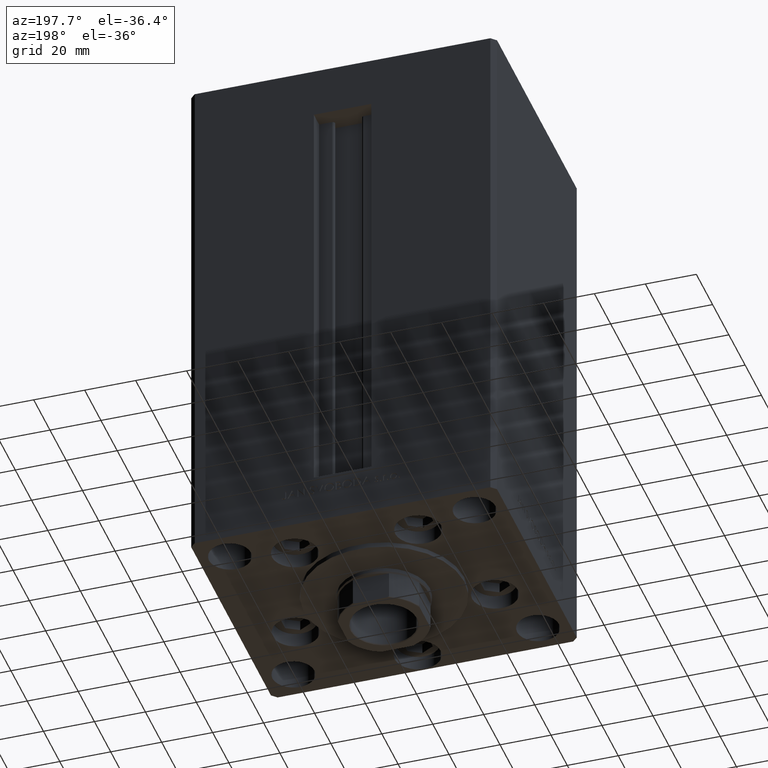
[diagram: clean part render]
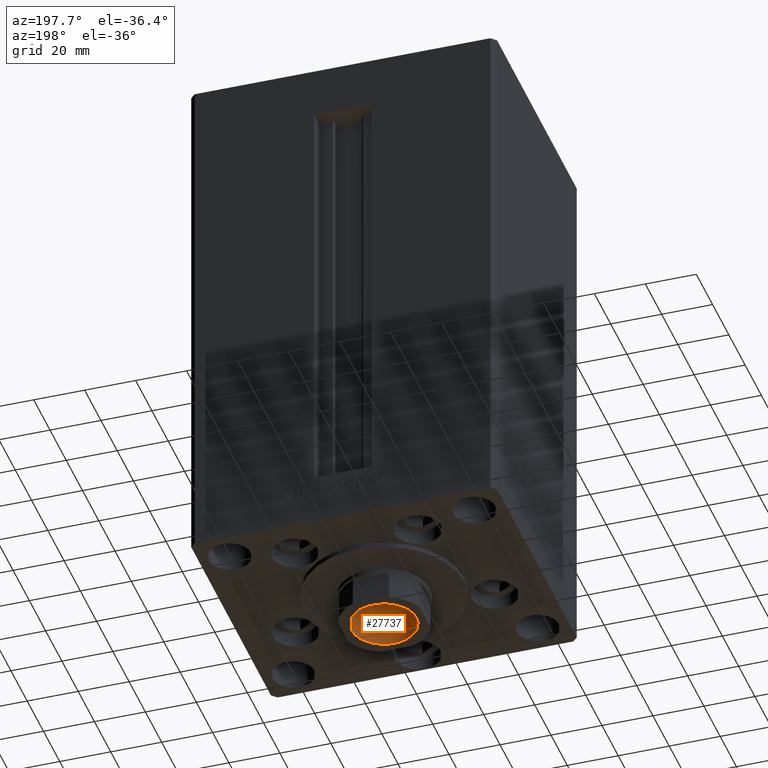
[diagram: same view with one face highlighted and labeled with its STEP entity id]
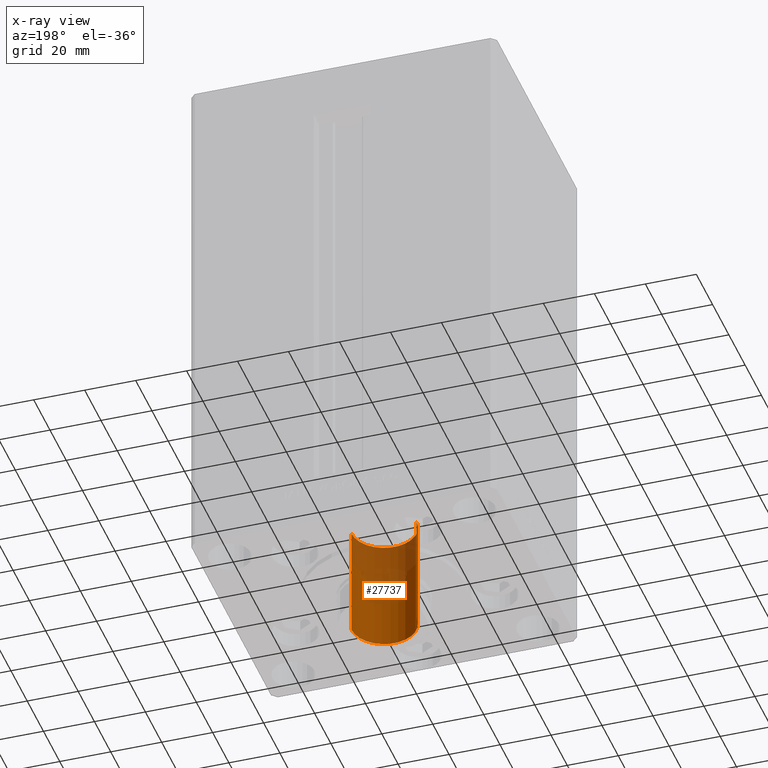
[diagram: x-ray of the same camera — body ghosted, the highlighted face saturated]
A machine part, auxiliary view. The second image highlights one B-rep face of the part: STEP entity #27737.
The next image is the same camera in x-ray: the body ghosted, the highlighted face saturated — about 48% of this face is hidden behind the body in this view.
In plain terms, the highlighted cylindrical surface (edge-blend (fillet) strip) has radius 12.75 mm, axis along (0, 0, -1).
Its self-contained STEP definition (entity closure, byte-faithful):
#932 = CARTESIAN_POINT ( 'NONE',  ( 0.000000000000000000, 0.000000000000000000, 189.2500000000000000 ) ) ;
#1414 = CYLINDRICAL_SURFACE ( 'NONE', #41785, 12.74999999999999467 ) ;
#2271 = CARTESIAN_POINT ( 'NONE',  ( -12.74999999999999467, 1.561424668912874519E-15, 188.9499999999999886 ) ) ;
#2665 = EDGE_CURVE ( 'NONE', #13252, #22052, #14942, .T. ) ;
#3756 = EDGE_CURVE ( 'NONE', #13252, #38367, #45050, .T. ) ;
#6148 = DIRECTION ( 'NONE',  ( -0.000000000000000000, -0.000000000000000000, 1.000000000000000000 ) ) ;
#9147 = ORIENTED_EDGE ( 'NONE', *, *, #3756, .F. ) ;
#11680 = AXIS2_PLACEMENT_3D ( 'NONE', #32954, #39412, #20516 ) ;
#12341 = DIRECTION ( 'NONE',  ( 1.000000000000000000, 0.000000000000000000, 0.000000000000000000 ) ) ;
#13252 = VERTEX_POINT ( 'NONE', #36466 ) ;
#14942 = LINE ( 'NONE', #45286, #41803 ) ;
#17517 = VERTEX_POINT ( 'NONE', #48474 ) ;
#17593 = LINE ( 'NONE', #21066, #39629 ) ;
#20516 = DIRECTION ( 'NONE',  ( 1.000000000000000000, 0.000000000000000000, 0.000000000000000000 ) ) ;
#21066 = CARTESIAN_POINT ( 'NONE',  ( 12.74999999999999467, 0.000000000000000000, 189.2500000000000000 ) ) ;
#22052 = VERTEX_POINT ( 'NONE', #2271 ) ;
#22886 = DIRECTION ( 'NONE',  ( 0.000000000000000000, 0.000000000000000000, 1.000000000000000000 ) ) ;
#27040 = DIRECTION ( 'NONE',  ( -0.000000000000000000, -0.000000000000000000, 1.000000000000000000 ) ) ;
#27115 = CARTESIAN_POINT ( 'NONE',  ( 0.000000000000000000, 0.000000000000000000, 188.9499999999999886 ) ) ;
#27737 = ADVANCED_FACE ( 'NONE', ( #39201 ), #1414, .F. ) ;
#29255 = CIRCLE ( 'NONE', #35574, 12.74999999999999467 ) ;
#32954 = CARTESIAN_POINT ( 'NONE',  ( 0.000000000000000000, 0.000000000000000000, 144.2500000000000000 ) ) ;
#33017 = EDGE_CURVE ( 'NONE', #22052, #17517, #29255, .T. ) ;
#35574 = AXIS2_PLACEMENT_3D ( 'NONE', #27115, #22886, #41541 ) ;
#35793 = ORIENTED_EDGE ( 'NONE', *, *, #2665, .T. ) ;
#36466 = CARTESIAN_POINT ( 'NONE',  ( -12.74999999999999112, 1.561424668912874125E-15, 144.2500000000000000 ) ) ;
#37241 = ORIENTED_EDGE ( 'NONE', *, *, #33017, .T. ) ;
#37987 = ORIENTED_EDGE ( 'NONE', *, *, #38854, .F. ) ;
#38367 = VERTEX_POINT ( 'NONE', #40854 ) ;
#38854 = EDGE_CURVE ( 'NONE', #38367, #17517, #17593, .T. ) ;
#39201 = FACE_OUTER_BOUND ( 'NONE', #46165, .T. ) ;
#39412 = DIRECTION ( 'NONE',  ( -0.000000000000000000, -0.000000000000000000, 1.000000000000000000 ) ) ;
#39629 = VECTOR ( 'NONE', #6148, 1000.000000000000000 ) ;
#40854 = CARTESIAN_POINT ( 'NONE',  ( 12.74999999999999112, 0.000000000000000000, 144.2500000000000000 ) ) ;
#41541 = DIRECTION ( 'NONE',  ( 1.000000000000000000, 0.000000000000000000, 0.000000000000000000 ) ) ;
#41544 = DIRECTION ( 'NONE',  ( -0.000000000000000000, -0.000000000000000000, 1.000000000000000000 ) ) ;
#41785 = AXIS2_PLACEMENT_3D ( 'NONE', #932, #27040, #12341 ) ;
#41803 = VECTOR ( 'NONE', #41544, 1000.000000000000000 ) ;
#45050 = CIRCLE ( 'NONE', #11680, 12.74999999999999112 ) ;
#45286 = CARTESIAN_POINT ( 'NONE',  ( -12.74999999999999467, 1.561424668912874519E-15, 189.2500000000000000 ) ) ;
#46165 = EDGE_LOOP ( 'NONE', ( #9147, #35793, #37241, #37987 ) ) ;
#48474 = CARTESIAN_POINT ( 'NONE',  ( 12.74999999999999467, 0.000000000000000000, 188.9499999999999886 ) ) ;